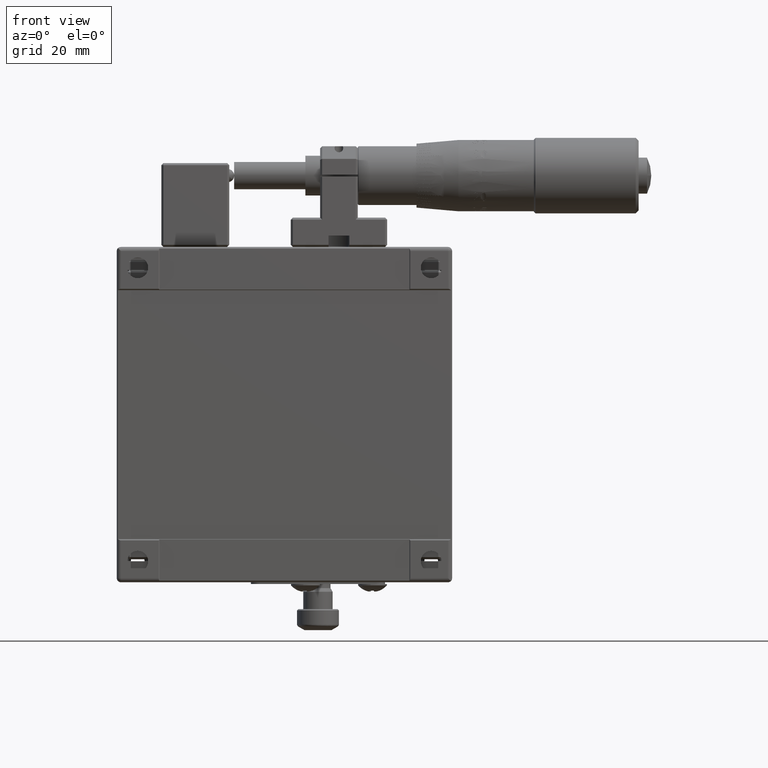
[diagram: clean part render]
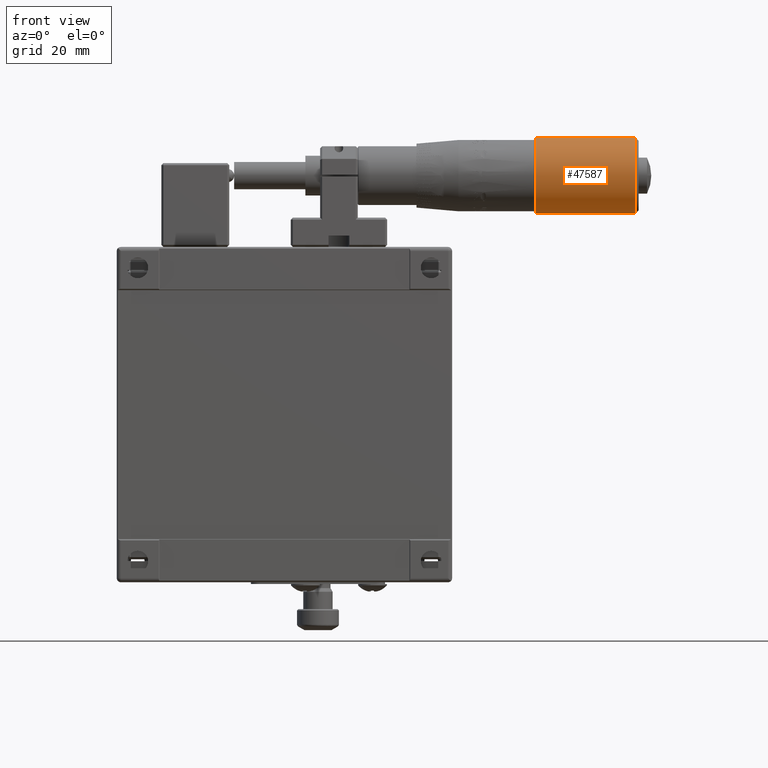
[diagram: same view with one face highlighted and labeled with its STEP entity id]
A machine part, front view. The second image highlights one B-rep face of the part: STEP entity #47587.
In plain terms, the highlighted cylindrical surface (partial cylindrical patch) has radius 9 mm, axis along (1, 0, 0).
Its self-contained STEP definition (entity closure, byte-faithful):
#6130 = VECTOR ( 'NONE', #47128, 1000.000000000000000 ) ;
#6417 = VECTOR ( 'NONE', #17692, 1000.000000000000000 ) ;
#10266 = ORIENTED_EDGE ( 'NONE', *, *, #20826, .T. ) ;
#12562 = DIRECTION ( 'NONE',  ( 0.000000000000000000, 0.000000000000000000, 1.000000000000000000 ) ) ;
#12937 = CARTESIAN_POINT ( 'NONE',  ( 82.80988274706869845, 4.039949748743709712, 66.00000000000000000 ) ) ;
#15261 = FACE_OUTER_BOUND ( 'NONE', #39053, .T. ) ;
#15937 = AXIS2_PLACEMENT_3D ( 'NONE', #25828, #59661, #12562 ) ;
#17692 = DIRECTION ( 'NONE',  ( 1.000000000000000000, 0.000000000000000000, 0.000000000000000000 ) ) ;
#18487 = ORIENTED_EDGE ( 'NONE', *, *, #35843, .T. ) ;
#19925 = DIRECTION ( 'NONE',  ( 0.000000000000000000, 0.000000000000000000, -1.000000000000000000 ) ) ;
#20684 = DIRECTION ( 'NONE',  ( 0.000000000000000000, 0.000000000000000000, -1.000000000000000000 ) ) ;
#20826 = EDGE_CURVE ( 'NONE', #25453, #63401, #27111, .T. ) ;
#25453 = VERTEX_POINT ( 'NONE', #61100 ) ;
#25828 = CARTESIAN_POINT ( 'NONE',  ( 55.20988274706869703, 4.039949748743705271, 57.00000000000000000 ) ) ;
#26279 = EDGE_CURVE ( 'NONE', #63401, #63925, #61319, .T. ) ;
#27111 = LINE ( 'NONE', #31878, #6130 ) ;
#31878 = CARTESIAN_POINT ( 'NONE',  ( 82.80988274706869845, 4.039949748743705271, 48.00000000000000000 ) ) ;
#33159 = ORIENTED_EDGE ( 'NONE', *, *, #38489, .F. ) ;
#35843 = EDGE_CURVE ( 'NONE', #42926, #25453, #43047, .T. ) ;
#36210 = DIRECTION ( 'NONE',  ( -1.000000000000000000, 0.000000000000000000, 0.000000000000000000 ) ) ;
#37917 = ORIENTED_EDGE ( 'NONE', *, *, #26279, .T. ) ;
#38489 = EDGE_CURVE ( 'NONE', #42926, #63925, #48894, .T. ) ;
#39053 = EDGE_LOOP ( 'NONE', ( #33159, #18487, #10266, #37917 ) ) ;
#42926 = VERTEX_POINT ( 'NONE', #56448 ) ;
#43047 = CIRCLE ( 'NONE', #15937, 9.000000000000001776 ) ;
#46810 = CYLINDRICAL_SURFACE ( 'NONE', #48471, 9.000000000000001776 ) ;
#47128 = DIRECTION ( 'NONE',  ( 1.000000000000000000, 0.000000000000000000, 0.000000000000000000 ) ) ;
#47587 = ADVANCED_FACE ( 'NONE', ( #15261 ), #46810, .T. ) ;
#48471 = AXIS2_PLACEMENT_3D ( 'NONE', #56279, #62375, #20684 ) ;
#48894 = LINE ( 'NONE', #12937, #6417 ) ;
#52145 = CARTESIAN_POINT ( 'NONE',  ( 79.10988274706869561, 4.039949748743705271, 57.00000000000000000 ) ) ;
#56279 = CARTESIAN_POINT ( 'NONE',  ( 82.80988274706869845, 4.039949748743705271, 57.00000000000000000 ) ) ;
#56448 = CARTESIAN_POINT ( 'NONE',  ( 55.20988274706869703, 4.039949748743709712, 66.00000000000000000 ) ) ;
#59661 = DIRECTION ( 'NONE',  ( 1.000000000000000000, 0.000000000000000000, 0.000000000000000000 ) ) ;
#61100 = CARTESIAN_POINT ( 'NONE',  ( 55.20988274706869703, 4.039949748743705271, 48.00000000000000000 ) ) ;
#61319 = CIRCLE ( 'NONE', #65635, 9.000000000000001776 ) ;
#62375 = DIRECTION ( 'NONE',  ( 1.000000000000000000, 0.000000000000000000, 0.000000000000000000 ) ) ;
#63401 = VERTEX_POINT ( 'NONE', #65488 ) ;
#63925 = VERTEX_POINT ( 'NONE', #66471 ) ;
#65488 = CARTESIAN_POINT ( 'NONE',  ( 79.10988274706869561, 4.039949748743705271, 48.00000000000000000 ) ) ;
#65635 = AXIS2_PLACEMENT_3D ( 'NONE', #52145, #36210, #19925 ) ;
#66471 = CARTESIAN_POINT ( 'NONE',  ( 79.10988274706869561, 4.039949748743709712, 66.00000000000000000 ) ) ;